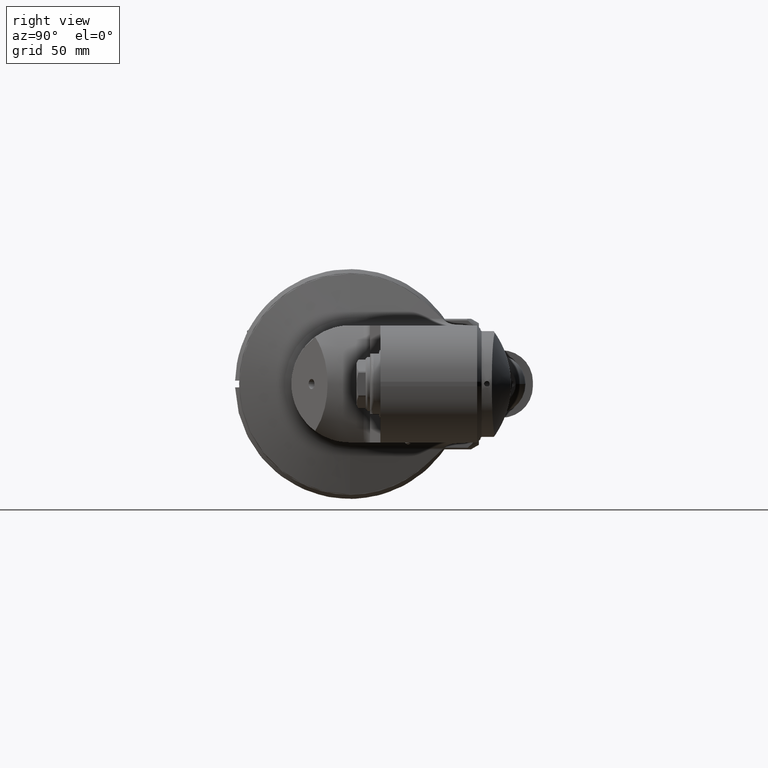
[diagram: clean part render]
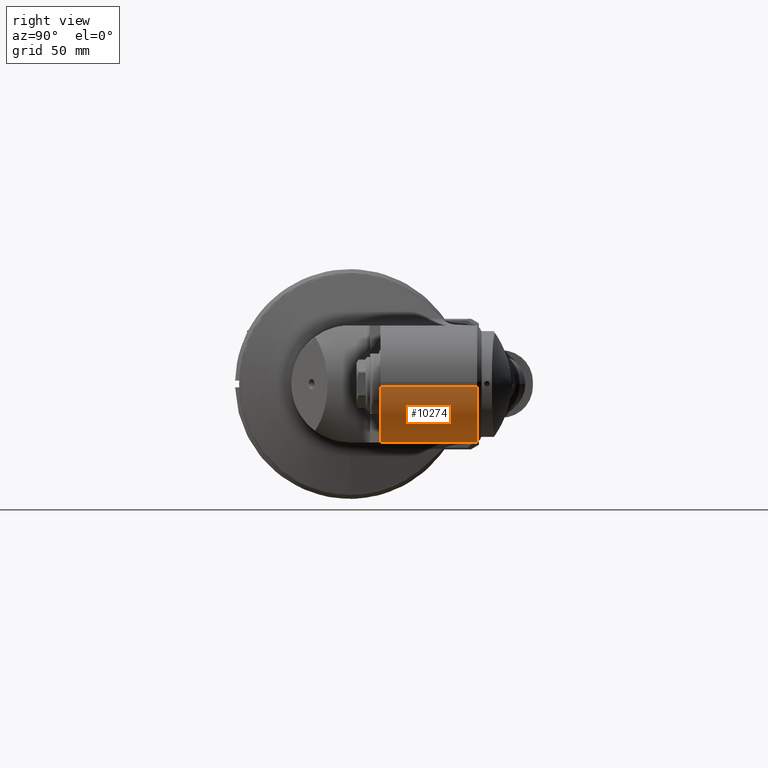
[diagram: same view with one face highlighted and labeled with its STEP entity id]
A machine part, right view. The second image highlights one B-rep face of the part: STEP entity #10274.
In plain terms, the highlighted cylindrical surface (partial cylindrical patch) has radius 25 mm, axis along (0, 1, 0).
Its self-contained STEP definition (entity closure, byte-faithful):
#1569=FACE_OUTER_BOUND('',#2250,.T.);
#2250=EDGE_LOOP('',(#8549,#8550,#8551,#8552));
#2965=LINE('',#47093,#3655);
#2968=LINE('',#47099,#3658);
#3655=VECTOR('',#13582,43.);
#3658=VECTOR('',#13587,43.);
#4255=CIRCLE('',#11406,25.);
#4256=CIRCLE('',#11407,25.);
#5057=VERTEX_POINT('',#47091);
#5058=VERTEX_POINT('',#47092);
#5059=VERTEX_POINT('',#47097);
#5060=VERTEX_POINT('',#47098);
#6296=EDGE_CURVE('',#5057,#5058,#2965,.T.);
#6299=EDGE_CURVE('',#5059,#5060,#2968,.T.);
#6300=EDGE_CURVE('',#5057,#5060,#4255,.T.);
#6301=EDGE_CURVE('',#5059,#5058,#4256,.T.);
#8549=ORIENTED_EDGE('',*,*,#6299,.T.);
#8550=ORIENTED_EDGE('',*,*,#6300,.F.);
#8551=ORIENTED_EDGE('',*,*,#6296,.T.);
#8552=ORIENTED_EDGE('',*,*,#6301,.F.);
#9853=CYLINDRICAL_SURFACE('',#11405,25.);
#10274=ADVANCED_FACE('',(#1569),#9853,.T.);
#11405=AXIS2_PLACEMENT_3D('',#47096,#13585,#13586);
#11406=AXIS2_PLACEMENT_3D('',#47100,#13588,#13589);
#11407=AXIS2_PLACEMENT_3D('',#47101,#13590,#13591);
#13582=DIRECTION('',(0.,-1.,0.));
#13585=DIRECTION('center_axis',(0.,1.,0.));
#13586=DIRECTION('ref_axis',(1.,0.,0.));
#13587=DIRECTION('',(0.,1.,0.));
#13588=DIRECTION('center_axis',(0.,1.,0.));
#13589=DIRECTION('ref_axis',(1.,0.,0.));
#13590=DIRECTION('center_axis',(0.,-1.,0.));
#13591=DIRECTION('ref_axis',(0.,0.,-1.));
#47091=CARTESIAN_POINT('',(125.5,56.5,-1.));
#47092=CARTESIAN_POINT('',(125.5,13.5,-1.));
#47093=CARTESIAN_POINT('',(125.5,56.5,-1.));
#47096=CARTESIAN_POINT('Origin',(100.5,0.,-1.));
#47097=CARTESIAN_POINT('',(100.5,13.5,-26.));
#47098=CARTESIAN_POINT('',(100.5,56.5,-26.));
#47099=CARTESIAN_POINT('',(100.5,13.5,-26.));
#47100=CARTESIAN_POINT('Origin',(100.5,56.5,-1.));
#47101=CARTESIAN_POINT('Origin',(100.5,13.5,-1.));